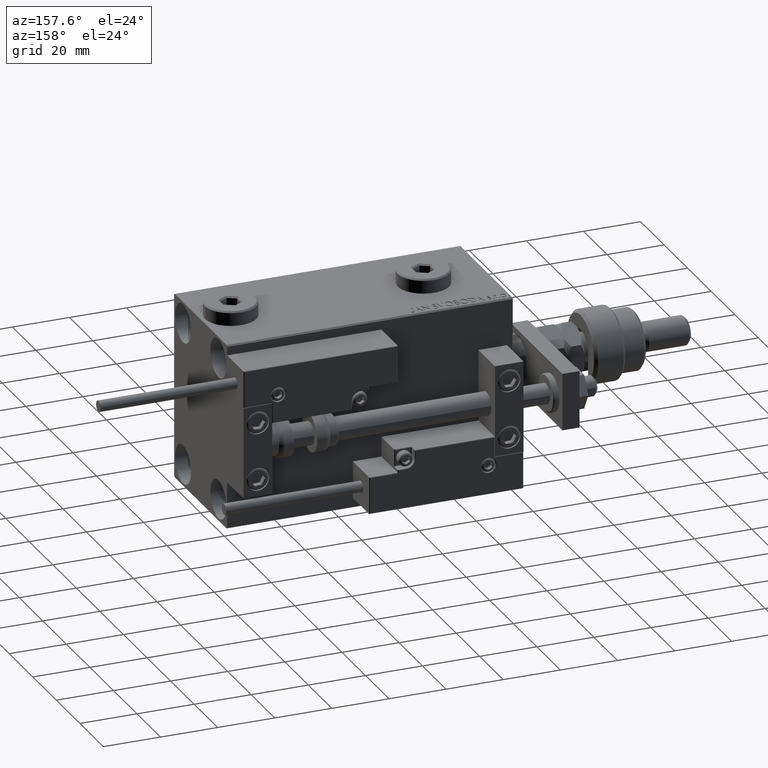
[diagram: clean part render]
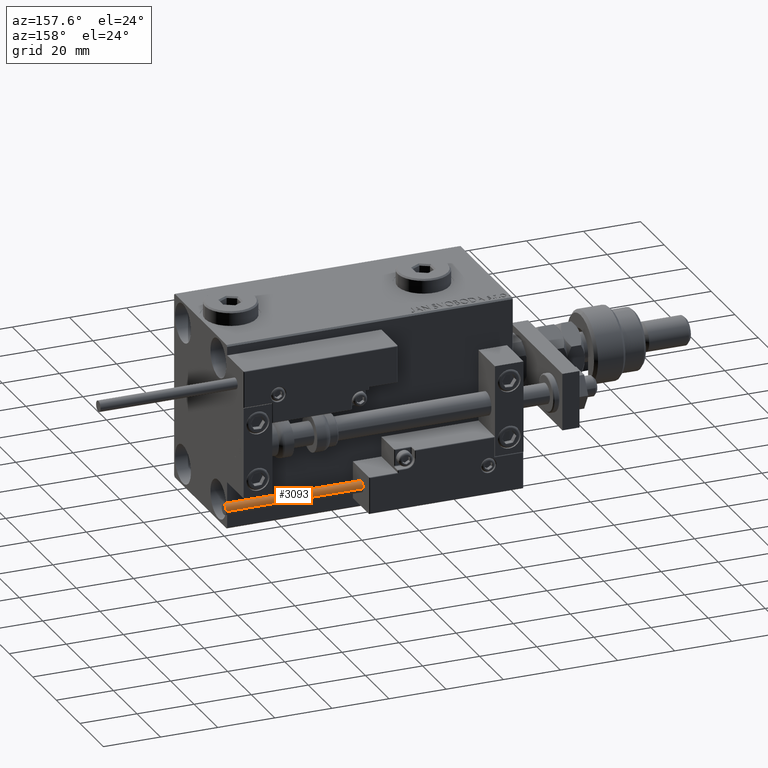
[diagram: same view with one face highlighted and labeled with its STEP entity id]
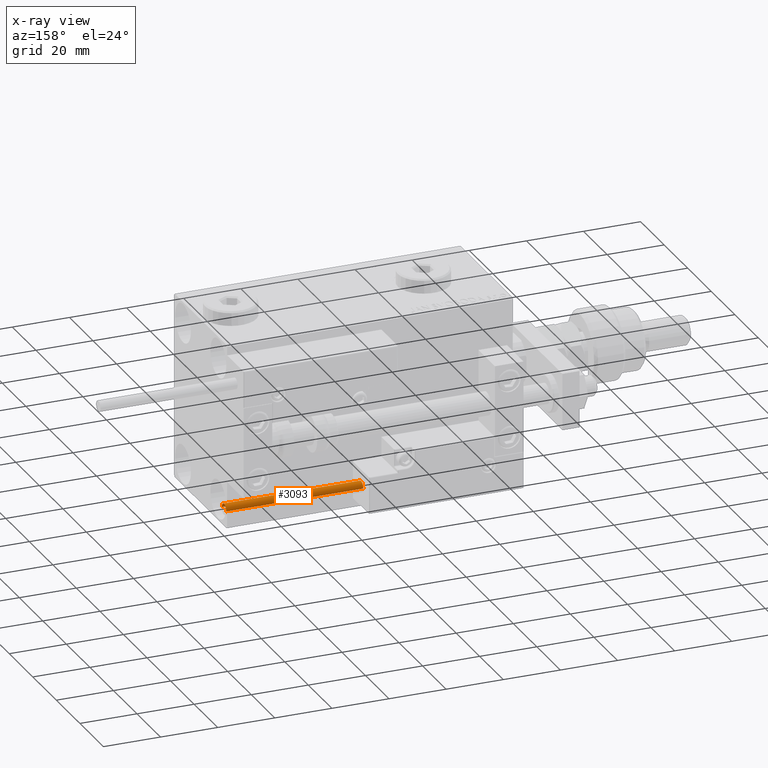
[diagram: x-ray of the same camera — body ghosted, the highlighted face saturated]
A machine part, auxiliary view. The second image highlights one B-rep face of the part: STEP entity #3093.
The next image is the same camera in x-ray: the body ghosted, the highlighted face saturated — about 0% of this face is hidden behind the body in this view.
In plain terms, the highlighted cylindrical surface (edge-blend (fillet) strip) has radius 1.9 mm, axis along (-1, 0, 0).
Its self-contained STEP definition (entity closure, byte-faithful):
#280 = EDGE_LOOP ( 'NONE', ( #18334, #32720, #14251, #47156 ) ) ;
#796 = DIRECTION ( 'NONE',  ( -0.000000000000000000, -0.000000000000000000, -1.000000000000000000 ) ) ;
#3093 = ADVANCED_FACE ( 'NONE', ( #19606 ), #16849, .T. ) ;
#3667 = CARTESIAN_POINT ( 'NONE',  ( 0.000000000000000000, 0.000000000000000000, 48.00000000000000000 ) ) ;
#4720 = CARTESIAN_POINT ( 'NONE',  ( 0.000000000000000000, 0.000000000000000000, 0.000000000000000000 ) ) ;
#5748 = CARTESIAN_POINT ( 'NONE',  ( 1.899999999999999467, 2.326828918379970872E-16, 48.00000000000000000 ) ) ;
#6168 = AXIS2_PLACEMENT_3D ( 'NONE', #3667, #54227, #16570 ) ;
#8631 = EDGE_CURVE ( 'NONE', #18682, #14241, #38038, .T. ) ;
#9904 = VERTEX_POINT ( 'NONE', #35643 ) ;
#13725 = AXIS2_PLACEMENT_3D ( 'NONE', #47663, #43532, #25974 ) ;
#14241 = VERTEX_POINT ( 'NONE', #53118 ) ;
#14251 = ORIENTED_EDGE ( 'NONE', *, *, #8631, .T. ) ;
#14276 = DIRECTION ( 'NONE',  ( 0.000000000000000000, 0.000000000000000000, 1.000000000000000000 ) ) ;
#16570 = DIRECTION ( 'NONE',  ( -1.000000000000000000, 0.000000000000000000, 0.000000000000000000 ) ) ;
#16849 = CYLINDRICAL_SURFACE ( 'NONE', #6168, 1.899999999999999467 ) ;
#16857 = CARTESIAN_POINT ( 'NONE',  ( -1.899999999999999467, 0.000000000000000000, 48.00000000000000000 ) ) ;
#17832 = AXIS2_PLACEMENT_3D ( 'NONE', #4720, #14276, #18413 ) ;
#18334 = ORIENTED_EDGE ( 'NONE', *, *, #20540, .F. ) ;
#18413 = DIRECTION ( 'NONE',  ( 1.000000000000000000, 0.000000000000000000, 0.000000000000000000 ) ) ;
#18682 = VERTEX_POINT ( 'NONE', #44871 ) ;
#19606 = FACE_OUTER_BOUND ( 'NONE', #280, .T. ) ;
#20540 = EDGE_CURVE ( 'NONE', #27237, #9904, #25158, .T. ) ;
#25158 = CIRCLE ( 'NONE', #13725, 1.899999999999999467 ) ;
#25884 = VECTOR ( 'NONE', #796, 1000.000000000000000 ) ;
#25974 = DIRECTION ( 'NONE',  ( 1.000000000000000000, 0.000000000000000000, 0.000000000000000000 ) ) ;
#27071 = LINE ( 'NONE', #29935, #25884 ) ;
#27237 = VERTEX_POINT ( 'NONE', #5748 ) ;
#29935 = CARTESIAN_POINT ( 'NONE',  ( 1.899999999999999467, 2.326828918379970872E-16, 48.00000000000000000 ) ) ;
#31393 = EDGE_CURVE ( 'NONE', #9904, #14241, #42405, .T. ) ;
#32720 = ORIENTED_EDGE ( 'NONE', *, *, #43983, .T. ) ;
#33601 = DIRECTION ( 'NONE',  ( -0.000000000000000000, -0.000000000000000000, -1.000000000000000000 ) ) ;
#35643 = CARTESIAN_POINT ( 'NONE',  ( -1.899999999999999467, 0.000000000000000000, 48.00000000000000000 ) ) ;
#38038 = CIRCLE ( 'NONE', #17832, 1.899999999999999467 ) ;
#42405 = LINE ( 'NONE', #16857, #46605 ) ;
#43532 = DIRECTION ( 'NONE',  ( 0.000000000000000000, 0.000000000000000000, 1.000000000000000000 ) ) ;
#43983 = EDGE_CURVE ( 'NONE', #27237, #18682, #27071, .T. ) ;
#44871 = CARTESIAN_POINT ( 'NONE',  ( 1.899999999999999467, 2.326828918379970872E-16, 0.000000000000000000 ) ) ;
#46605 = VECTOR ( 'NONE', #33601, 1000.000000000000000 ) ;
#47156 = ORIENTED_EDGE ( 'NONE', *, *, #31393, .F. ) ;
#47663 = CARTESIAN_POINT ( 'NONE',  ( 0.000000000000000000, 0.000000000000000000, 48.00000000000000000 ) ) ;
#53118 = CARTESIAN_POINT ( 'NONE',  ( -1.899999999999999467, 0.000000000000000000, 0.000000000000000000 ) ) ;
#54227 = DIRECTION ( 'NONE',  ( -0.000000000000000000, -0.000000000000000000, -1.000000000000000000 ) ) ;